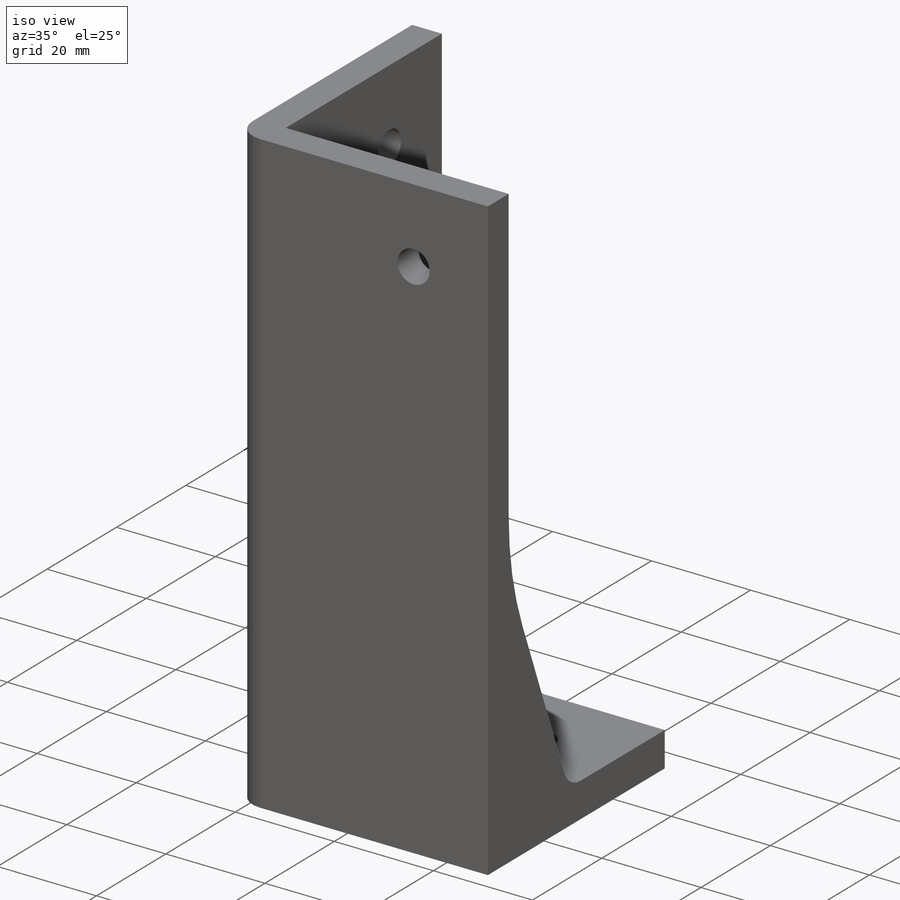
[diagram: iso view]
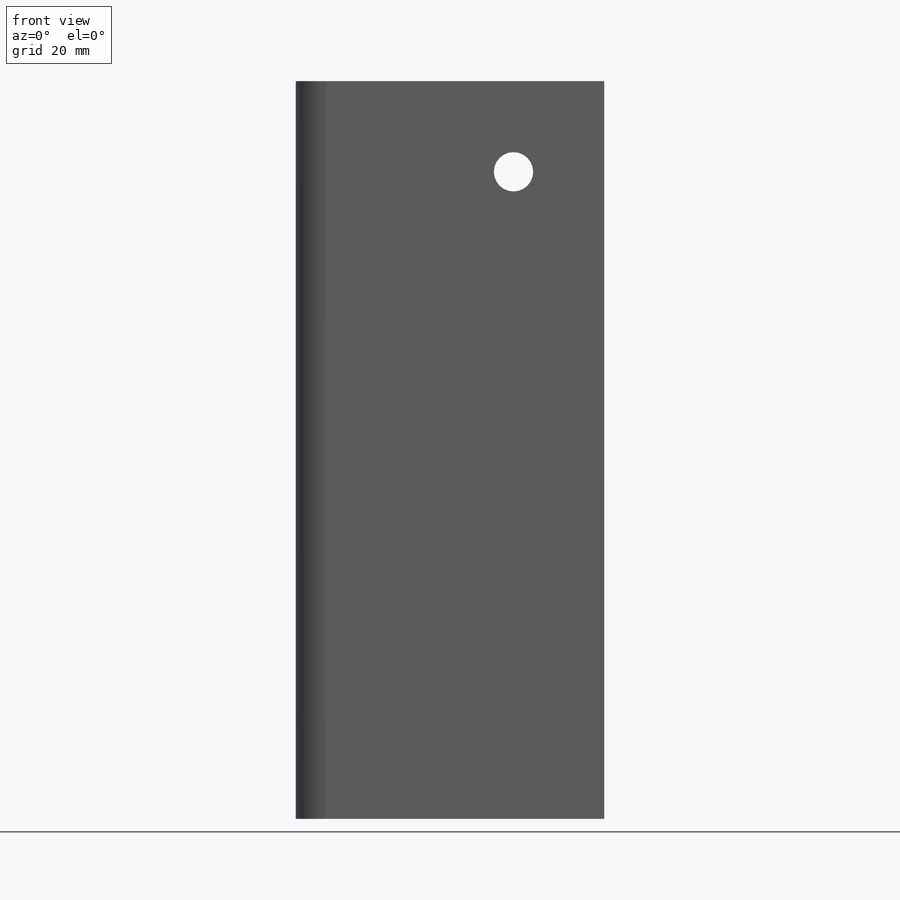
[diagram: front view]
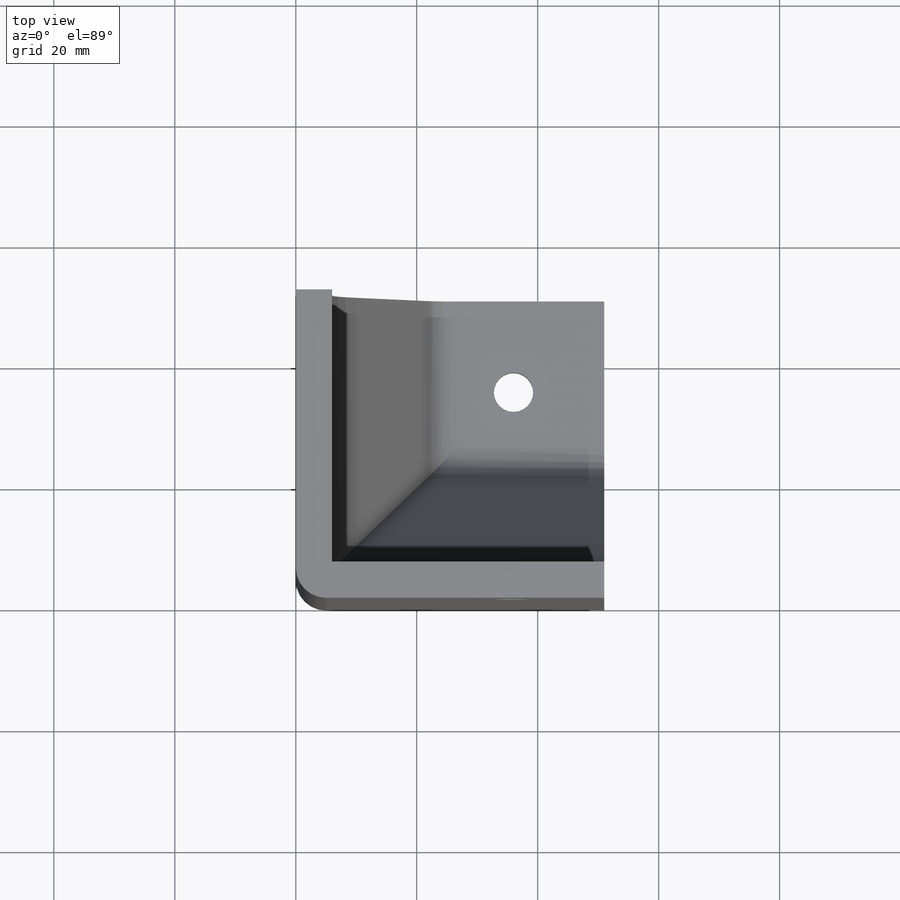
[diagram: top view]
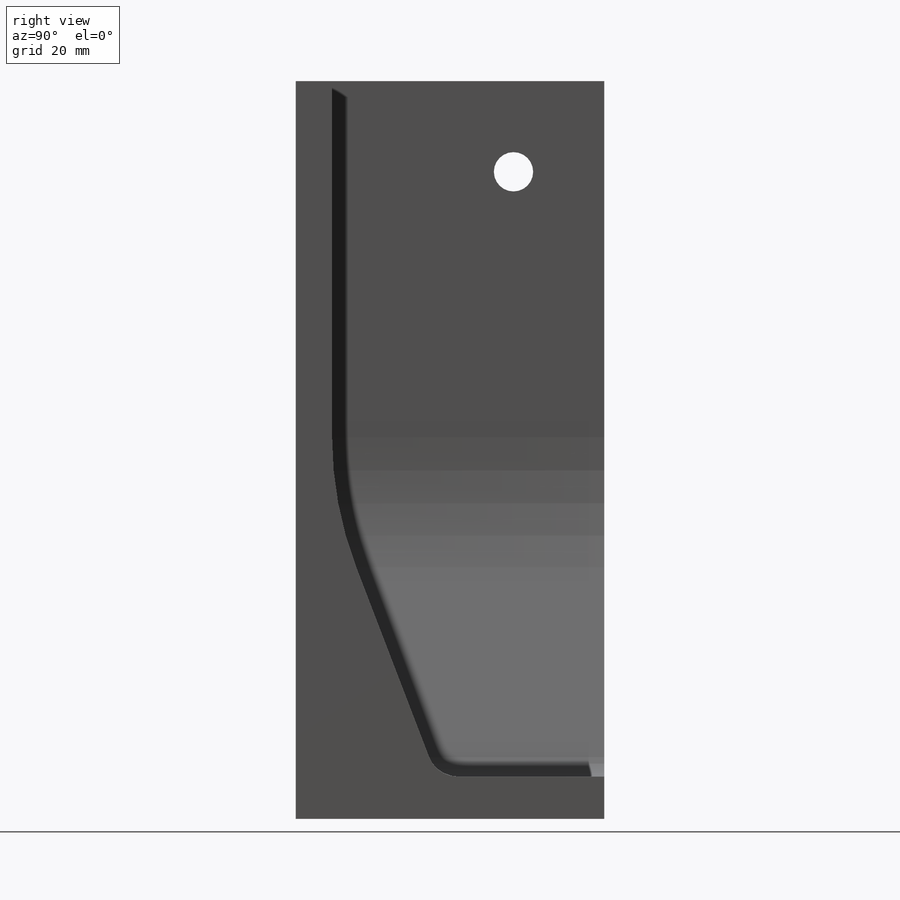
[diagram: right view]
SOLIDWORKS PART (.sldprt)
format: sldprt  version: not decoded by parser v0  size: 252,416 bytes
history: native  units: mm
features: sketch x6, fillet x3, extrude x2, hole x2, material x1, chamfer x1 (+12 scaffold rows collapsed)
feature tree (27):
  scaffold x12  (default folders/planes/origin — collapsed)
  material  "ABS PC"
  sketch  "Sketch2"  dims[c1.D2=6.5mm c1.D3=6.5mm c1.D4=6.5mm c1.D1=~36.599768mm c2.D2=~45.832018mm c2.D1=51.0mm c2.D3=15.0mm c2.D4=15.0mm]
  extrude  "Boss-Extrude2"  Depth=7mm
  sketch  "Sketch3"  dims[D1=6.0mm]
  extrude  "Boss-Extrude3"  Depth=115mm
  hole  "Ø6.5 (6.5) Diameter Hole1"  Diameter=6.5mm Depth=6mm
  sketch  "Sketch5"  dims[D1=15.0mm D2=15.0mm]
  sketch  "Sketch4"  dims[hole-wizard template sketch: 46 standard entries collapsed; hole parameters kept: c15.Hole Dia.=6.5mm c15.Hole Depth=6.0mm c15.D3=~14.816244mm c15.Drill Angle=118.0deg]
  hole  "Ø6.5 (6.5) Diameter Hole2"  Diameter=6.5mm Depth=6mm
  sketch  "Sketch7"  dims[D1=15.0mm D2=15.0mm]
  sketch  "Sketch6"  dims[hole-wizard template sketch: 46 standard entries collapsed; hole parameters kept: c15.Hole Dia.=6.5mm c15.Hole Depth=6.0mm c15.D3=~14.816244mm c15.Drill Angle=118.0deg]
  chamfer  "Chamfer1"  Distance=45mm Angle=21deg
  fillet  "Fillet1"  Radius=5mm
  fillet  "Fillet2"  Radius=60mm
  fillet  "Fillet3"  Radius=5mm
decode coverage: 14 of 14 modeling features carry decoded parameters
note: ~ marks probable driven/reference dimensions
note: suppression state not decoded; provenance and decode notes live in map.json
